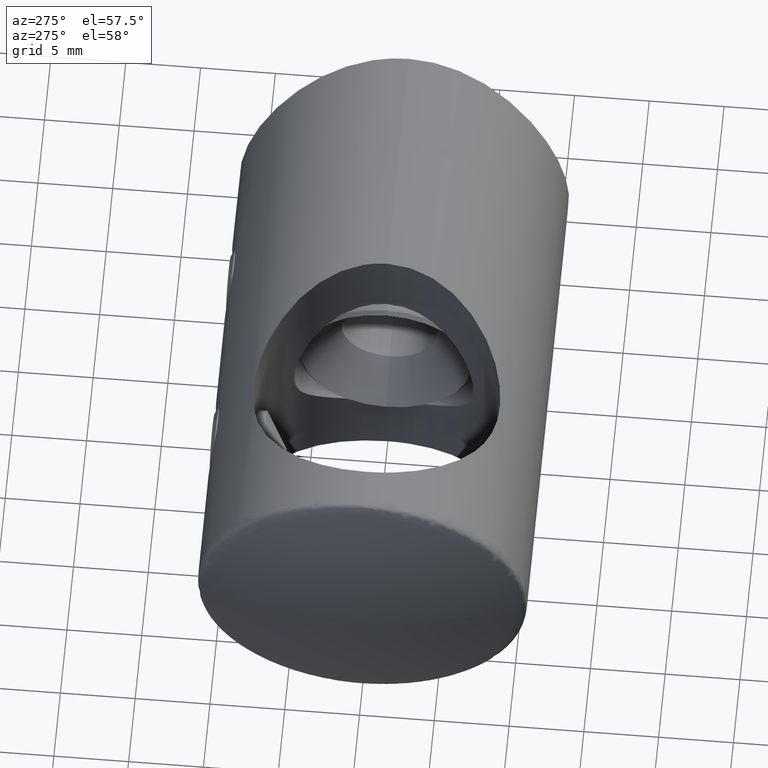
[diagram: clean part render]
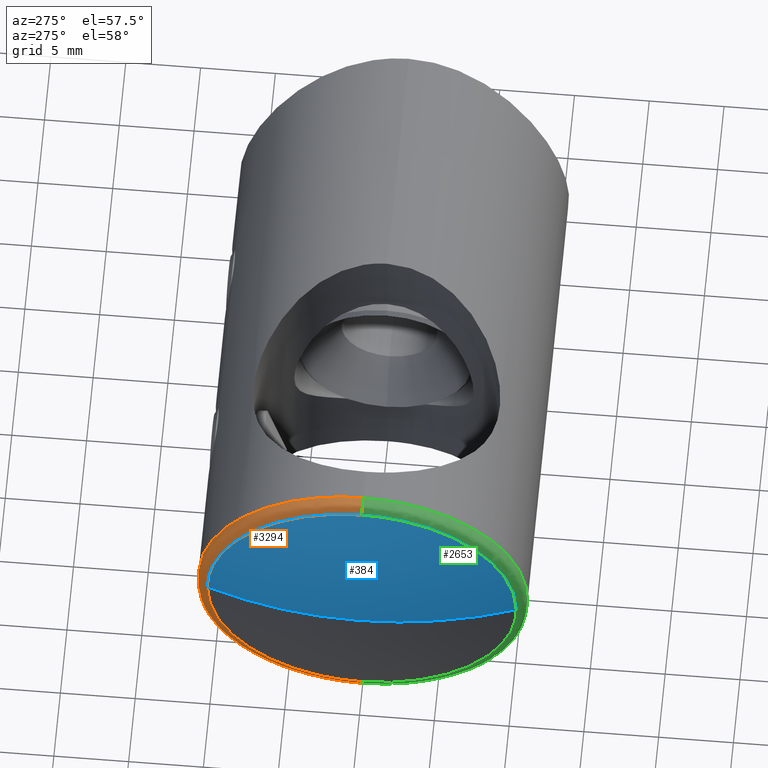
[diagram: same view with three faces highlighted in distinct colors, each labeled with its STEP entity id]
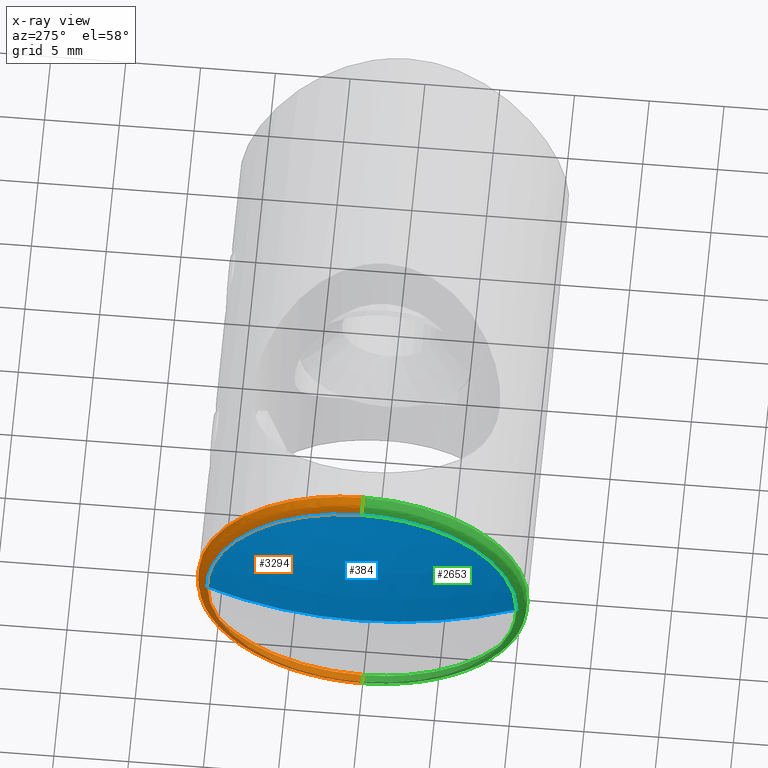
[diagram: x-ray of the same camera — body ghosted, the three highlighted faces saturated]
A machine part, auxiliary view with three faces highlighted in distinct colors.
The next image is the same camera in x-ray (body ghosted, the three faces saturated) — at least one of them is partly hidden behind the body in this view.
Their STEP definitions:

[orange] entity #3294 — the highlighted face is a freeform B-spline surface patch.
#96 = CARTESIAN_POINT ( 'NONE',  ( 1.756922039244211300, 10.06170120438815900, 2.704007071909405800 ) ) ;
#113 = CARTESIAN_POINT ( 'NONE',  ( 2.700700533988579500, 6.735557395310440100E-016, -10.99999999999999600 ) ) ;
#128 = CARTESIAN_POINT ( 'NONE',  ( 2.700700533988579500, -2.879226730170273200, 10.71369944243265800 ) ) ;
#152 = CARTESIAN_POINT ( 'NONE',  ( 2.700700533988579900, 5.539808784079892400, 9.611650271896836600 ) ) ;
#202 = CARTESIAN_POINT ( 'NONE',  ( 1.991401168373671600, -5.539808781859558300, -9.611650272817016100 ) ) ;
#218 = CARTESIAN_POINT ( 'NONE',  ( 1.756922039244510200, -6.348623141828340100, -8.261021097563572700 ) ) ;
#235 = CARTESIAN_POINT ( 'NONE',  ( 1.991401168373105400, -2.879226730172406200, -10.71369944243128300 ) ) ;
#252 = CARTESIAN_POINT ( 'NONE',  ( 1.991401168373389000, 10.71369944243242300, -2.879226730169565300 ) ) ;
#268 = CARTESIAN_POINT ( 'NONE',  ( 1.991401168373389000, 9.611650272815879200, -5.539808781862394200 ) ) ;
#310 = VERTEX_POINT ( 'NONE', #3356 ) ;
#376 = VERTEX_POINT ( 'NONE', #4851 ) ;
#453 = CARTESIAN_POINT ( 'NONE',  ( 1.756922039244400300, 10.33057851239669000, -1.352269562824468800 ) ) ;
#547 = CARTESIAN_POINT ( 'NONE',  ( 2.700700533988579500, 9.611650272815428100, -5.539808781862208600 ) ) ;
#555 = CARTESIAN_POINT ( 'NONE',  ( 2.700700533988579000, 1.439896632895322400, -10.99999999999999500 ) ) ;
#576 = CARTESIAN_POINT ( 'NONE',  ( 2.700700533988579900, 10.71369944335146900, 2.879226727952081800 ) ) ;
#592 = CARTESIAN_POINT ( 'NONE',  ( 2.700700533988579500, -5.539808781859387700, -9.611650272816595100 ) ) ;
#596 = CARTESIAN_POINT ( 'NONE',  ( 2.700700533988579500, 10.99999999999999800, 1.439896632895321800 ) ) ;
#607 = CARTESIAN_POINT ( 'NONE',  ( 2.700700533988579500, 10.99999999999999600, -1.439896630495494300 ) ) ;
#625 = CARTESIAN_POINT ( 'NONE',  ( 1.991401168373956500, 8.796335264681996300, 6.760013921420905600 ) ) ;
#643 = CARTESIAN_POINT ( 'NONE',  ( 1.756922039244520800, 9.026718888820257200, -5.202675414972051500 ) ) ;
#644 = ORIENTED_EDGE ( 'NONE', *, *, #4967, .F. ) ;
#662 = CARTESIAN_POINT ( 'NONE',  ( 1.756922039244400300, -1.352269562824466100, 10.33057851239669000 ) ) ;
#677 = CARTESIAN_POINT ( 'NONE',  ( 1.991401168373389900, 8.796335264683129700, -6.760013921420911000 ) ) ;
#776 = EDGE_CURVE ( 'NONE', #376, #2372, #2001, .T. ) ;
#786 = CARTESIAN_POINT ( 'NONE',  ( 1.991401168373389900, 1.347111479062088200E-015, 10.99999999999999800 ) ) ;
#832 = CARTESIAN_POINT ( 'NONE',  ( 1.756922039244400300, 9.026718887957203600, -5.202675417054742000 ) ) ;
#941 = CARTESIAN_POINT ( 'NONE',  ( 2.700700533988579500, 10.99999999999999600, 1.439896630495493000 ) ) ;
#988 = CARTESIAN_POINT ( 'NONE',  ( 2.700700533988579500, 8.796335266379976800, 6.760013919724059400 ) ) ;
#1007 = CARTESIAN_POINT ( 'NONE',  ( 2.700700533988579000, 2.879226727952080500, 10.71369944335146900 ) ) ;
#1020 = CARTESIAN_POINT ( 'NONE',  ( 2.700700533988579500, 2.879226730168871700, -10.71369944243324200 ) ) ;
#1026 = CARTESIAN_POINT ( 'NONE',  ( 2.700700533988579900, 10.99999999999999600, -1.439896632895319800 ) ) ;
#1039 = CARTESIAN_POINT ( 'NONE',  ( 1.756922039244196200, 2.704007071909384900, -10.06170120438812000 ) ) ;
#1059 = CARTESIAN_POINT ( 'NONE',  ( 1.991401168373390300, 11.00000000000000000, -1.439896630495495200 ) ) ;
#1073 = CARTESIAN_POINT ( 'NONE',  ( 1.991401168373390300, 1.439896630495494100, 11.00000000000000000 ) ) ;
#1088 = CARTESIAN_POINT ( 'NONE',  ( 1.991401168372537900, -8.796335264684824300, -6.760013921418077700 ) ) ;
#1109 = CARTESIAN_POINT ( 'NONE',  ( 1.991401168372821000, 6.760013921422030100, 8.796335264683143900 ) ) ;
#1121 = VERTEX_POINT ( 'NONE', #1921 ) ;
#1188 = CARTESIAN_POINT ( 'NONE',  ( 1.756922039244400500, 10.06170120525118800, 2.704007069827278500 ) ) ;
#1213 = CARTESIAN_POINT ( 'NONE',  ( 1.756922039244400500, -3.162827477136756300E-016, 10.33057851239669000 ) ) ;
#1300 = CARTESIAN_POINT ( 'NONE',  ( 1.756922039244400500, 10.33057851239669000, 9.398703391090517800E-016 ) ) ;
#1309 = CARTESIAN_POINT ( 'NONE',  ( 1.756922039244588600, 9.026718888820232300, 5.202675414972618200 ) ) ;
#1378 = CARTESIAN_POINT ( 'NONE',  ( 2.700700533988579500, -2.879226730172579800, -10.71369944243170600 ) ) ;
#1395 = CARTESIAN_POINT ( 'NONE',  ( 2.700700533988579500, 8.796335264683126100, -6.760013921420911800 ) ) ;
#1411 = CARTESIAN_POINT ( 'NONE',  ( 2.700700533988579500, -5.539808781861667700, 9.611650272815653700 ) ) ;
#1417 = CARTESIAN_POINT ( 'NONE',  ( 2.700700533988579500, 6.760013919724062100, 8.796335266379978500 ) ) ;
#1429 = CARTESIAN_POINT ( 'NONE',  ( 2.700700533988579500, 1.347111479062087800E-015, 10.99999999999999600 ) ) ;
#1467 = CARTESIAN_POINT ( 'NONE',  ( 1.991401168373388500, -5.539808781862271700, 9.611650272817108500 ) ) ;
#1480 = CARTESIAN_POINT ( 'NONE',  ( 1.756922039244400500, -10.33057851239669000, -1.352269562827477700 ) ) ;
#1499 = CARTESIAN_POINT ( 'NONE',  ( 1.756922039244275300, -10.06170120438695600, -2.704007071912782700 ) ) ;
#1518 = CARTESIAN_POINT ( 'NONE',  ( 2.700700533988579500, 2.879226730169502300, 10.71369944243298300 ) ) ;
#1533 = CARTESIAN_POINT ( 'NONE',  ( 1.756922039244547300, -5.202675414972121700, 9.026718888820312300 ) ) ;
#1624 = CARTESIAN_POINT ( 'NONE',  ( 1.756922039244541500, 6.348623141831094300, 8.261021097560945500 ) ) ;
#1644 = CARTESIAN_POINT ( 'NONE',  ( 1.756922039244400300, 5.202675417054743800, 9.026718887957201800 ) ) ;
#1662 = CARTESIAN_POINT ( 'NONE',  ( 1.756922039244400300, 8.261021099154746100, 6.348623140236722600 ) ) ;
#1760 = B_SPLINE_CURVE_WITH_KNOTS ( 'NONE', 3,
 ( #1300, #2091, #5092, #832, #5109, #3819, #4283, #4249, #3024, #2543 ),
 .UNSPECIFIED., .F., .F.,
 ( 4, 2, 2, 2, 4 ),
 ( 0.2500000000000000000, 0.3125000000000000000, 0.3750000000000000000, 0.4375000000000000000, 0.5000000000000000000 ),
 .UNSPECIFIED. ) ;
#1788 = CARTESIAN_POINT ( 'NONE',  ( 2.700700533988579500, -1.439896630495491700, 10.99999999999999600 ) ) ;
#1824 = CARTESIAN_POINT ( 'NONE',  ( 2.700700533988579500, -8.796335264683142100, 6.760013921420894100 ) ) ;
#1830 = CARTESIAN_POINT ( 'NONE',  ( 2.700700533988579500, -6.735557395310441000E-016, 10.99999999999999600 ) ) ;
#1847 = CARTESIAN_POINT ( 'NONE',  ( 2.700700533988579500, -10.71369944243440700, 2.879226730166064100 ) ) ;
#1883 = CARTESIAN_POINT ( 'NONE',  ( 1.991401168373390300, -11.00000000000000000, 1.439896630498682900 ) ) ;
#1902 = CARTESIAN_POINT ( 'NONE',  ( 1.991401168372821400, -8.796335264683714100, 6.760013921421464300 ) ) ;
#1919 = CARTESIAN_POINT ( 'NONE',  ( 1.756922039244601000, -9.026718888819088300, 5.202675414975465700 ) ) ;
#1921 = CARTESIAN_POINT ( 'NONE',  ( 1.756922039244400500, -3.162827477136756300E-016, 10.33057851239669000 ) ) ;
#1932 = CARTESIAN_POINT ( 'NONE',  ( 1.991401168373390300, 1.347111479062088200E-015, 11.00000000000000000 ) ) ;
#1953 = CARTESIAN_POINT ( 'NONE',  ( 1.756922039244199300, -10.06170120438929400, 2.704007071906579200 ) ) ;
#2001 =( BOUNDED_CURVE ( )  B_SPLINE_CURVE ( 2, ( #113, #3048, #3946 ),
 .UNSPECIFIED., .F., .F. ) 
 B_SPLINE_CURVE_WITH_KNOTS ( ( 3, 3 ),
 ( 0.0000000000000000000, 1.000000000000000000 ),
 .UNSPECIFIED. ) 
 CURVE ( )  GEOMETRIC_REPRESENTATION_ITEM ( )  RATIONAL_B_SPLINE_CURVE ( ( 1.000000000000000000, 4.078263282937810700, 1.000000000000000000 ) ) 
 REPRESENTATION_ITEM ( '' )  );
#2055 = CARTESIAN_POINT ( 'NONE',  ( 1.756922039244400500, 6.348623140236719000, 8.261021099154751500 ) ) ;
#2089 = CARTESIAN_POINT ( 'NONE',  ( 1.756922039244400500, 9.026718887957201800, 5.202675417054750000 ) ) ;
#2091 = CARTESIAN_POINT ( 'NONE',  ( 1.756922039244400500, 10.33057851239669100, -1.352269565078248400 ) ) ;
#2217 = CARTESIAN_POINT ( 'NONE',  ( 2.700700533988579500, -10.99999999999999800, 1.439896630498682400 ) ) ;
#2290 = CARTESIAN_POINT ( 'NONE',  ( 1.756922039244400500, 1.581413738568378900E-015, -10.33057851239669000 ) ) ;
#2315 = CARTESIAN_POINT ( 'NONE',  ( 1.991401168373672100, -10.71369944243468600, 2.879226730166179600 ) ) ;
#2329 = CARTESIAN_POINT ( 'NONE',  ( 2.700700533988579500, 5.539808781862499900, 9.611650272815303700 ) ) ;
#2346 = CARTESIAN_POINT ( 'NONE',  ( 2.700700533988579500, 6.760013921421462500, 8.796335264682577200 ) ) ;
#2363 = CARTESIAN_POINT ( 'NONE',  ( 1.991401168373389000, 5.539808781861833800, -9.611650272814744200 ) ) ;
#2372 = VERTEX_POINT ( 'NONE', #2290 ) ;
#2381 = CARTESIAN_POINT ( 'NONE',  ( 1.756922039244524600, -5.202675414969234200, -9.026718888821436700 ) ) ;
#2543 = CARTESIAN_POINT ( 'NONE',  ( 1.756922039244400500, 1.581413738568378900E-015, -10.33057851239669000 ) ) ;
#2638 = CARTESIAN_POINT ( 'NONE',  ( 2.700700533988579500, 6.760013921420911000, -8.796335264683127900 ) ) ;
#2663 = CARTESIAN_POINT ( 'NONE',  ( 2.700700533988579500, 2.879226727952081800, -10.71369944335146900 ) ) ;
#2699 = CARTESIAN_POINT ( 'NONE',  ( 2.700700533988579500, -8.796335264685394500, -6.760013921418646100 ) ) ;
#2705 = CARTESIAN_POINT ( 'NONE',  ( 2.700700533988579500, -6.735557395310441000E-016, 10.99999999999999600 ) ) ;
#2718 = CARTESIAN_POINT ( 'NONE',  ( 2.700700533988579500, 10.71369944243287600, -2.879226730169753200 ) ) ;
#2734 = CARTESIAN_POINT ( 'NONE',  ( 1.991401168374240500, -6.760013921419203900, -8.796335264685970000 ) ) ;
#2754 = CARTESIAN_POINT ( 'NONE',  ( 1.756922039244290400, -8.261021097563119800, -6.348623141827907500 ) ) ;
#2761 = ORIENTED_EDGE ( 'NONE', *, *, #3672, .F. ) ;
#2774 = CARTESIAN_POINT ( 'NONE',  ( 1.756922039244400300, 1.265130990854703100E-015, 10.33057851239669000 ) ) ;
#2789 = CARTESIAN_POINT ( 'NONE',  ( 1.991401168373957000, -6.760013921420338100, 8.796335264682568300 ) ) ;
#2792 = EDGE_CURVE ( 'NONE', #1121, #310, #4462, .T. ) ;
#2806 = CARTESIAN_POINT ( 'NONE',  ( 1.756922039244259000, -6.348623141829968100, 8.261021097560933100 ) ) ;
#2816 =( BOUNDED_CURVE ( )  B_SPLINE_CURVE ( 2, ( #4502, #786, #1213 ),
 .UNSPECIFIED., .F., .T. ) 
 B_SPLINE_CURVE_WITH_KNOTS ( ( 3, 3 ),
 ( 0.0000000000000000000, 1.000000000000000000 ),
 .UNSPECIFIED. ) 
 CURVE ( )  GEOMETRIC_REPRESENTATION_ITEM ( )  RATIONAL_B_SPLINE_CURVE ( ( 1.000000000000000000, 4.078263282937810700, 1.000000000000000000 ) ) 
 REPRESENTATION_ITEM ( '' )  );
#2866 = CARTESIAN_POINT ( 'NONE',  ( 1.756922039244259000, 8.261021097560366400, 6.348623141830538300 ) ) ;
#3009 = FACE_OUTER_BOUND ( 'NONE', #4238, .T. ) ;
#3024 = CARTESIAN_POINT ( 'NONE',  ( 1.756922039244400500, 1.352269565078253900, -10.33057851239669100 ) ) ;
#3048 = CARTESIAN_POINT ( 'NONE',  ( 1.991401168373389900, 0.0000000000000000000, -10.99999999999999800 ) ) ;
#3106 = CARTESIAN_POINT ( 'NONE',  ( 2.700700533988579500, 1.439896630495578900, -10.99999999999999600 ) ) ;
#3133 = CARTESIAN_POINT ( 'NONE',  ( 2.700700533988578600, 10.71369944335146600, -2.879226727952080500 ) ) ;
#3145 = CARTESIAN_POINT ( 'NONE',  ( 2.700700533988579500, -6.760013921418633700, -8.796335264685403400 ) ) ;
#3150 = CARTESIAN_POINT ( 'NONE',  ( 2.700700533988579000, 9.611650271896833100, 5.539808784079891500 ) ) ;
#3151 = ORIENTED_EDGE ( 'NONE', *, *, #776, .T. ) ;
#3163 = CARTESIAN_POINT ( 'NONE',  ( 2.700700533988579500, -1.439896630495578900, -10.99999999999999600 ) ) ;
#3183 = CARTESIAN_POINT ( 'NONE',  ( 1.991401168373389900, 9.611650272813610800, 5.539808781862406700 ) ) ;
#3198 = CARTESIAN_POINT ( 'NONE',  ( 1.756922039244400000, 8.261021097561359400, -6.348623141830112000 ) ) ;
#3214 = CARTESIAN_POINT ( 'NONE',  ( 1.991401168373389900, 6.760013921420911000, -8.796335264683129700 ) ) ;
#3237 = CARTESIAN_POINT ( 'NONE',  ( 1.991401168373390300, -11.00000000000000000, -1.439896630498699100 ) ) ;
#3258 = CARTESIAN_POINT ( 'NONE',  ( 1.756922039244400300, 1.352269562824548000, -10.33057851239669000 ) ) ;
#3273 = CARTESIAN_POINT ( 'NONE',  ( 1.756922039244533100, 5.202675414972132400, 9.026718888820260700 ) ) ;
#3294 = ADVANCED_FACE ( 'NONE', ( #3009 ), #4163, .T. ) ;
#3312 = CARTESIAN_POINT ( 'NONE',  ( 1.756922039244267300, 2.704007071909910700, 10.06170120438812400 ) ) ;
#3356 = CARTESIAN_POINT ( 'NONE',  ( 1.756922039244400500, 10.33057851239669000, 9.398703391090517800E-016 ) ) ;
#3539 = CARTESIAN_POINT ( 'NONE',  ( 2.700700533988579500, 9.611650272815257500, 5.539808781862618000 ) ) ;
#3546 = CARTESIAN_POINT ( 'NONE',  ( 2.700700533988579500, 9.611650271896834900, -5.539808784079888900 ) ) ;
#3564 = CARTESIAN_POINT ( 'NONE',  ( 2.700700533988579500, 6.760013919724061200, -8.796335266379975000 ) ) ;
#3582 = CARTESIAN_POINT ( 'NONE',  ( 2.700700533988579000, 5.539808784079891500, -9.611650271896834900 ) ) ;
#3597 = CARTESIAN_POINT ( 'NONE',  ( 1.991401168373390300, -1.439896630495491700, 11.00000000000000000 ) ) ;
#3613 = CARTESIAN_POINT ( 'NONE',  ( 2.700700533988579500, 8.796335264682564800, 6.760013921421475800 ) ) ;
#3631 = CARTESIAN_POINT ( 'NONE',  ( 2.700700533988579500, 1.439896630495494300, 10.99999999999999600 ) ) ;
#3650 = CARTESIAN_POINT ( 'NONE',  ( 1.756922039244400000, -10.33057851239669000, 1.352269562827463000 ) ) ;
#3665 = CARTESIAN_POINT ( 'NONE',  ( 1.991401168373389900, 10.71369944243469200, 2.879226730169576000 ) ) ;
#3672 = EDGE_CURVE ( 'NONE', #5016, #1121, #2816, .T. ) ;
#3819 = CARTESIAN_POINT ( 'NONE',  ( 1.756922039244400300, 6.348623140236723500, -8.261021099154746100 ) ) ;
#3925 = CARTESIAN_POINT ( 'NONE',  ( 2.700700533988579500, 10.71369944243304000, 2.879226730169361000 ) ) ;
#3941 = CARTESIAN_POINT ( 'NONE',  ( 2.700700533988579500, -10.71369944243187100, -2.879226730172183200 ) ) ;
#3946 = CARTESIAN_POINT ( 'NONE',  ( 1.756922039244400500, 1.581413738568378900E-015, -10.33057851239669000 ) ) ;
#3947 = CARTESIAN_POINT ( 'NONE',  ( 2.700700533988579500, 6.735557395310440100E-016, -10.99999999999999600 ) ) ;
#3968 = CARTESIAN_POINT ( 'NONE',  ( 2.700700533988579900, 1.439896632895322200, 10.99999999999999600 ) ) ;
#4000 = CARTESIAN_POINT ( 'NONE',  ( 2.700700533988579500, 5.539808781863098600, -9.611650272815058600 ) ) ;
#4015 = CARTESIAN_POINT ( 'NONE',  ( 1.756922039244400000, 6.348623141830111100, -8.261021097561361200 ) ) ;
#4032 = CARTESIAN_POINT ( 'NONE',  ( 1.991401168373389000, 2.879226730170266100, 10.71369944243346100 ) ) ;
#4050 = CARTESIAN_POINT ( 'NONE',  ( 1.756922039244275700, -2.704007071912778200, -10.06170120438695800 ) ) ;
#4058 = B_SPLINE_CURVE_WITH_KNOTS ( 'NONE', 3,
 ( #3947, #555, #2663, #3582, #3564, #4396, #3546, #3133, #1026, #596, #576, #3150, #988, #1417, #152, #1007, #3968, #1830 ),
 .UNSPECIFIED., .F., .F.,
 ( 4, 2, 2, 2, 2, 2, 2, 2, 4 ),
 ( 0.5000000000000000000, 0.5625000000000000000, 0.6250000000000000000, 0.6874999999999998900, 0.7499999999999998900, 0.8124999999999998900, 0.8750000000000000000, 0.9375000000000000000, 1.000000000000000000 ),
 .UNSPECIFIED. ) ;
#4067 = CARTESIAN_POINT ( 'NONE',  ( 1.991401168373390300, 1.439896630495578700, -11.00000000000000000 ) ) ;
#4085 = CARTESIAN_POINT ( 'NONE',  ( 1.756922039244252800, -2.704007071909865900, 10.06170120438809300 ) ) ;
#4163 =( BOUNDED_SURFACE ( )  B_SPLINE_SURFACE ( 2, 3, ( 
 ( #1429, #1788, #128, #1411, #4843, #1824, #5176, #1847, #2217, #4824, #3941, #5251, #2699, #3145, #592, #1378, #3163, #3106, #1020, #4000, #2638, #1395, #547, #2718, #607, #941, #3925, #3539, #3613, #2346, #2329, #1518, #3631, #4458 ),
 ( #1932, #3597, #5268, #1467, #2789, #1902, #4910, #2315, #1883, #3237, #5303, #5318, #1088, #2734, #202, #235, #4444, #4067, #4493, #2363, #3214, #677, #268, #252, #1059, #4858, #3665, #3183, #625, #1109, #4874, #4032, #1073, #5287 ),
 ( #2774, #662, #4085, #1533, #2806, #4510, #1919, #1953, #3650, #1480, #1499, #4926, #2754, #218, #2381, #4050, #5335, #3258, #1039, #4475, #4015, #3198, #643, #4891, #453, #5051, #96, #1309, #2866, #1624, #3273, #3312, #4600, #4164 ) ),
 .UNSPECIFIED., .F., .T., .F. ) 
 B_SPLINE_SURFACE_WITH_KNOTS ( ( 3, 3 ),
 ( 4, 2, 2, 2, 2, 2, 2, 2, 2, 2, 2, 2, 2, 2, 2, 2, 4 ),
 ( 0.0000000000000000000, 1.000000000000000000 ),
 ( -3.141592653589793100, -2.748893571891069000, -2.356194490192344800, -1.963495408493620700, -1.570796326794896600, -1.178097245096172400, -0.7853981633974482800, -0.3926990816987241400, 0.0000000000000000000, 0.3926990816987241400, 0.7853981633974482800, 1.178097245096172400, 1.570796326794896600, 1.963495408493620700, 2.356194490192344800, 2.748893571891069000, 3.141592653589793100 ),
 .UNSPECIFIED. ) 
 GEOMETRIC_REPRESENTATION_ITEM ( )  RATIONAL_B_SPLINE_SURFACE ( (
 ( 1.000000000000000000, 1.000000000000000000, 1.000000000000000000, 1.000000000000000000, 1.000000000000000000, 1.000000000000000000, 1.000000000000000000, 1.000000000000000000, 1.000000000000000000, 1.000000000000000000, 1.000000000000000000, 1.000000000000000000, 1.000000000000000000, 1.000000000000000000, 1.000000000000000000, 1.000000000000000000, 1.000000000000000000, 1.000000000000000000, 1.000000000000000000, 1.000000000000000000, 1.000000000000000000, 1.000000000000000000, 1.000000000000000000, 1.000000000000000000, 1.000000000000000000, 1.000000000000000000, 1.000000000000000000, 1.000000000000000000, 1.000000000000000000, 1.000000000000000000, 1.000000000000000000, 1.000000000000000000, 1.000000000000000000, 1.000000000000000000),
 ( 4.078263282937810700, 4.078263282937810700, 4.078263282937807200, 4.078263282937807200, 4.078263282937810700, 4.078263282937810700, 4.078263282937807200, 4.078263282937807200, 4.078263282937810700, 4.078263282937810700, 4.078263282937810700, 4.078263282937810700, 4.078263282937810700, 4.078263282937810700, 4.078263282937809800, 4.078263282937809800, 4.078263282937810700, 4.078263282937810700, 4.078263282937808900, 4.078263282937808900, 4.078263282937810700, 4.078263282937810700, 4.078263282937809800, 4.078263282937809800, 4.078263282937810700, 4.078263282937810700, 4.078263282937810700, 4.078263282937810700, 4.078263282937809800, 4.078263282937809800, 4.078263282937808000, 4.078263282937808000, 4.078263282937810700, 4.078263282937810700),
 ( 1.000000000000000000, 1.000000000000000000, 1.000000000000000000, 1.000000000000000000, 1.000000000000000000, 1.000000000000000000, 1.000000000000000000, 1.000000000000000000, 1.000000000000000000, 1.000000000000000000, 1.000000000000000000, 1.000000000000000000, 1.000000000000000000, 1.000000000000000000, 1.000000000000000000, 1.000000000000000000, 1.000000000000000000, 1.000000000000000000, 1.000000000000000000, 1.000000000000000000, 1.000000000000000000, 1.000000000000000000, 1.000000000000000000, 1.000000000000000000, 1.000000000000000000, 1.000000000000000000, 1.000000000000000000, 1.000000000000000000, 1.000000000000000000, 1.000000000000000000, 1.000000000000000000, 1.000000000000000000, 1.000000000000000000, 1.000000000000000000) ) ) 
 REPRESENTATION_ITEM ( '' )  SURFACE ( )  );
#4164 = CARTESIAN_POINT ( 'NONE',  ( 1.756922039244400300, 1.265130990854703100E-015, 10.33057851239669000 ) ) ;
#4238 = EDGE_LOOP ( 'NONE', ( #644, #3151, #4239, #4445, #2761 ) ) ;
#4239 = ORIENTED_EDGE ( 'NONE', *, *, #5423, .F. ) ;
#4246 = CARTESIAN_POINT ( 'NONE',  ( 1.756922039244400500, 10.33057851239669000, 9.398703391090517800E-016 ) ) ;
#4249 = CARTESIAN_POINT ( 'NONE',  ( 1.756922039244400500, 2.704007069827279300, -10.06170120525118800 ) ) ;
#4283 = CARTESIAN_POINT ( 'NONE',  ( 1.756922039244400500, 5.202675417054750900, -9.026718887957201800 ) ) ;
#4396 = CARTESIAN_POINT ( 'NONE',  ( 2.700700533988579000, 8.796335266379978500, -6.760013919724060300 ) ) ;
#4444 = CARTESIAN_POINT ( 'NONE',  ( 1.991401168373390300, -1.439896630495578700, -11.00000000000000000 ) ) ;
#4445 = ORIENTED_EDGE ( 'NONE', *, *, #2792, .F. ) ;
#4458 = CARTESIAN_POINT ( 'NONE',  ( 2.700700533988579500, 1.347111479062087800E-015, 10.99999999999999600 ) ) ;
#4462 = B_SPLINE_CURVE_WITH_KNOTS ( 'NONE', 3,
 ( #5452, #5433, #4643, #1644, #2055, #1662, #2089, #1188, #5001, #4246 ),
 .UNSPECIFIED., .F., .F.,
 ( 4, 2, 2, 2, 4 ),
 ( 0.0000000000000000000, 0.06250000000000000000, 0.1250000000000000000, 0.1875000000000000000, 0.2500000000000000000 ),
 .UNSPECIFIED. ) ;
#4475 = CARTESIAN_POINT ( 'NONE',  ( 1.756922039244604300, 5.202675414972631500, -9.026718888820273200 ) ) ;
#4493 = CARTESIAN_POINT ( 'NONE',  ( 1.991401168373389000, 2.879226730170137300, -10.71369944243355800 ) ) ;
#4502 = CARTESIAN_POINT ( 'NONE',  ( 2.700700533988579500, -6.735557395310441000E-016, 10.99999999999999600 ) ) ;
#4510 = CARTESIAN_POINT ( 'NONE',  ( 1.756922039244541500, -8.261021097561512100, 6.348623141830525900 ) ) ;
#4600 = CARTESIAN_POINT ( 'NONE',  ( 1.756922039244400300, 1.352269562824468800, 10.33057851239669000 ) ) ;
#4643 = CARTESIAN_POINT ( 'NONE',  ( 1.756922039244400700, 2.704007069827276200, 10.06170120525118800 ) ) ;
#4824 = CARTESIAN_POINT ( 'NONE',  ( 2.700700533988579500, -10.99999999999999500, -1.439896630498698200 ) ) ;
#4843 = CARTESIAN_POINT ( 'NONE',  ( 2.700700533988579500, -6.760013921420907400, 8.796335264683131400 ) ) ;
#4851 = CARTESIAN_POINT ( 'NONE',  ( 2.700700533988579500, 6.735557395310440100E-016, -10.99999999999999600 ) ) ;
#4858 = CARTESIAN_POINT ( 'NONE',  ( 1.991401168373390300, 11.00000000000000000, 1.439896630495493200 ) ) ;
#4874 = CARTESIAN_POINT ( 'NONE',  ( 1.991401168373389000, 5.539808781861732500, 9.611650272814825900 ) ) ;
#4891 = CARTESIAN_POINT ( 'NONE',  ( 1.756922039244279700, 10.06170120438814100, -2.704007071909956900 ) ) ;
#4910 = CARTESIAN_POINT ( 'NONE',  ( 1.991401168373105000, -9.611650272813602000, 5.539808781865822600 ) ) ;
#4926 = CARTESIAN_POINT ( 'NONE',  ( 1.756922039244524600, -9.026718888821434900, -5.202675414969237800 ) ) ;
#4967 = EDGE_CURVE ( 'NONE', #376, #5016, #4058, .T. ) ;
#5001 = CARTESIAN_POINT ( 'NONE',  ( 1.756922039244400500, 10.33057851239669100, 1.352269565078253200 ) ) ;
#5016 = VERTEX_POINT ( 'NONE', #2705 ) ;
#5051 = CARTESIAN_POINT ( 'NONE',  ( 1.756922039244400300, 10.33057851239669000, 1.352269562824467400 ) ) ;
#5092 = CARTESIAN_POINT ( 'NONE',  ( 1.756922039244400700, 10.06170120525119000, -2.704007069827276200 ) ) ;
#5109 = CARTESIAN_POINT ( 'NONE',  ( 1.756922039244400500, 8.261021099154753200, -6.348623140236719000 ) ) ;
#5176 = CARTESIAN_POINT ( 'NONE',  ( 2.700700533988579500, -9.611650272813880800, 5.539808781865938100 ) ) ;
#5251 = CARTESIAN_POINT ( 'NONE',  ( 2.700700533988579500, -9.611650272816426400, -5.539808781859792800 ) ) ;
#5268 = CARTESIAN_POINT ( 'NONE',  ( 1.991401168373388500, -2.879226730169670100, 10.71369944243120100 ) ) ;
#5287 = CARTESIAN_POINT ( 'NONE',  ( 1.991401168373390300, 1.347111479062088200E-015, 11.00000000000000000 ) ) ;
#5303 = CARTESIAN_POINT ( 'NONE',  ( 1.991401168373389900, -10.71369944243242000, -2.879226730173547900 ) ) ;
#5318 = CARTESIAN_POINT ( 'NONE',  ( 1.991401168373389900, -9.611650272815875700, -5.539808781858430300 ) ) ;
#5335 = CARTESIAN_POINT ( 'NONE',  ( 1.756922039244400300, -1.352269562824548000, -10.33057851239669000 ) ) ;
#5423 = EDGE_CURVE ( 'NONE', #310, #2372, #1760, .T. ) ;
#5433 = CARTESIAN_POINT ( 'NONE',  ( 1.756922039244400500, 1.352269565078248800, 10.33057851239669300 ) ) ;
#5452 = CARTESIAN_POINT ( 'NONE',  ( 1.756922039244400500, -3.162827477136756300E-016, 10.33057851239669000 ) ) ;

[blue] entity #384 — the highlighted spherical surface has radius 31.25 mm.
#310 = VERTEX_POINT ( 'NONE', #3356 ) ;
#384 = ADVANCED_FACE ( 'NONE', ( #3626 ), #5285, .T. ) ;
#1121 = VERTEX_POINT ( 'NONE', #1921 ) ;
#1188 = CARTESIAN_POINT ( 'NONE',  ( 1.756922039244400500, 10.06170120525118800, 2.704007069827278500 ) ) ;
#1201 = CARTESIAN_POINT ( 'NONE',  ( 0.0000000000000000000, 1.913510623667738700E-015, 0.0000000000000000000 ) ) ;
#1223 = CIRCLE ( 'NONE', #4492, 31.24999999999998900 ) ;
#1377 = ORIENTED_EDGE ( 'NONE', *, *, #1734, .F. ) ;
#1644 = CARTESIAN_POINT ( 'NONE',  ( 1.756922039244400300, 5.202675417054743800, 9.026718887957201800 ) ) ;
#1662 = CARTESIAN_POINT ( 'NONE',  ( 1.756922039244400300, 8.261021099154746100, 6.348623140236722600 ) ) ;
#1719 = CARTESIAN_POINT ( 'NONE',  ( 1.756922039244400500, -5.202675417054735800, 9.026718887957207100 ) ) ;
#1734 = EDGE_CURVE ( 'NONE', #2758, #3380, #1810, .T. ) ;
#1810 = CIRCLE ( 'NONE', #2479, 31.24999999999998900 ) ;
#1921 = CARTESIAN_POINT ( 'NONE',  ( 1.756922039244400500, -3.162827477136756300E-016, 10.33057851239669000 ) ) ;
#2002 = EDGE_CURVE ( 'NONE', #310, #3380, #1223, .T. ) ;
#2055 = CARTESIAN_POINT ( 'NONE',  ( 1.756922039244400500, 6.348623140236719000, 8.261021099154751500 ) ) ;
#2089 = CARTESIAN_POINT ( 'NONE',  ( 1.756922039244400500, 9.026718887957201800, 5.202675417054750000 ) ) ;
#2104 = ORIENTED_EDGE ( 'NONE', *, *, #2792, .T. ) ;
#2173 = DIRECTION ( 'NONE',  ( 1.000000000000000000, 0.0000000000000000000, 0.0000000000000000000 ) ) ;
#2197 = CARTESIAN_POINT ( 'NONE',  ( 1.756922039244400500, -9.026718887957205300, 5.202675417054743800 ) ) ;
#2206 = CARTESIAN_POINT ( 'NONE',  ( 31.24999999999998900, 0.0000000000000000000, 0.0000000000000000000 ) ) ;
#2308 = CARTESIAN_POINT ( 'NONE',  ( 31.24999999999998900, 0.0000000000000000000, 0.0000000000000000000 ) ) ;
#2479 = AXIS2_PLACEMENT_3D ( 'NONE', #3342, #5043, #2939 ) ;
#2495 = ORIENTED_EDGE ( 'NONE', *, *, #2002, .T. ) ;
#2579 = CARTESIAN_POINT ( 'NONE',  ( 1.756922039244400500, -2.704007069827262900, 10.06170120525119100 ) ) ;
#2758 = VERTEX_POINT ( 'NONE', #3669 ) ;
#2792 = EDGE_CURVE ( 'NONE', #1121, #310, #4462, .T. ) ;
#2939 = DIRECTION ( 'NONE',  ( 0.0000000000000000000, 1.000000000000000000, 1.224646799147353200E-016 ) ) ;
#3004 = CARTESIAN_POINT ( 'NONE',  ( 1.756922039244400700, -6.348623140236732400, 8.261021099154740800 ) ) ;
#3017 = EDGE_CURVE ( 'NONE', #2758, #1121, #3070, .T. ) ;
#3070 = B_SPLINE_CURVE_WITH_KNOTS ( 'NONE', 3,
 ( #4264, #4280, #5090, #2197, #3459, #3004, #1719, #2579, #5161, #4748 ),
 .UNSPECIFIED., .F., .F.,
 ( 4, 2, 2, 2, 4 ),
 ( 0.7500000000000000000, 0.8125000000000000000, 0.8750000000000000000, 0.9375000000000000000, 1.000000000000000000 ),
 .UNSPECIFIED. ) ;
#3174 = DIRECTION ( 'NONE',  ( 0.0000000000000000000, 1.000000000000000000, 0.0000000000000000000 ) ) ;
#3257 = AXIS2_PLACEMENT_3D ( 'NONE', #2308, #4155, #3174 ) ;
#3342 = CARTESIAN_POINT ( 'NONE',  ( 31.24999999999998900, 0.0000000000000000000, 0.0000000000000000000 ) ) ;
#3356 = CARTESIAN_POINT ( 'NONE',  ( 1.756922039244400500, 10.33057851239669000, 9.398703391090517800E-016 ) ) ;
#3380 = VERTEX_POINT ( 'NONE', #1201 ) ;
#3434 = DIRECTION ( 'NONE',  ( -0.0000000000000000000, 0.0000000000000000000, 1.000000000000000000 ) ) ;
#3459 = CARTESIAN_POINT ( 'NONE',  ( 1.756922039244400500, -8.261021099154756800, 6.348623140236709300 ) ) ;
#3578 = EDGE_LOOP ( 'NONE', ( #1377, #4449, #2104, #2495 ) ) ;
#3626 = FACE_OUTER_BOUND ( 'NONE', #3578, .T. ) ;
#3669 = CARTESIAN_POINT ( 'NONE',  ( 1.756922039244400500, -10.33057851239669000, -5.583983872732769300E-015 ) ) ;
#4155 = DIRECTION ( 'NONE',  ( -0.0000000000000000000, 0.0000000000000000000, -1.000000000000000000 ) ) ;
#4246 = CARTESIAN_POINT ( 'NONE',  ( 1.756922039244400500, 10.33057851239669000, 9.398703391090517800E-016 ) ) ;
#4264 = CARTESIAN_POINT ( 'NONE',  ( 1.756922039244400500, -10.33057851239669000, -5.583983872732769300E-015 ) ) ;
#4280 = CARTESIAN_POINT ( 'NONE',  ( 1.756922039244400700, -10.33057851239669300, 1.352269565078247500 ) ) ;
#4449 = ORIENTED_EDGE ( 'NONE', *, *, #3017, .T. ) ;
#4462 = B_SPLINE_CURVE_WITH_KNOTS ( 'NONE', 3,
 ( #5452, #5433, #4643, #1644, #2055, #1662, #2089, #1188, #5001, #4246 ),
 .UNSPECIFIED., .F., .F.,
 ( 4, 2, 2, 2, 4 ),
 ( 0.0000000000000000000, 0.06250000000000000000, 0.1250000000000000000, 0.1875000000000000000, 0.2500000000000000000 ),
 .UNSPECIFIED. ) ;
#4492 = AXIS2_PLACEMENT_3D ( 'NONE', #2206, #3434, #2173 ) ;
#4643 = CARTESIAN_POINT ( 'NONE',  ( 1.756922039244400700, 2.704007069827276200, 10.06170120525118800 ) ) ;
#4748 = CARTESIAN_POINT ( 'NONE',  ( 1.756922039244400500, -3.162827477136756300E-016, 10.33057851239669000 ) ) ;
#5001 = CARTESIAN_POINT ( 'NONE',  ( 1.756922039244400500, 10.33057851239669100, 1.352269565078253200 ) ) ;
#5043 = DIRECTION ( 'NONE',  ( 0.0000000000000000000, 1.224646799147353200E-016, -1.000000000000000000 ) ) ;
#5090 = CARTESIAN_POINT ( 'NONE',  ( 1.756922039244400700, -10.06170120525118800, 2.704007069827273100 ) ) ;
#5161 = CARTESIAN_POINT ( 'NONE',  ( 1.756922039244400300, -1.352269565078255000, 10.33057851239669100 ) ) ;
#5285 = SPHERICAL_SURFACE ( 'NONE', #3257, 31.24999999999998900 ) ;
#5433 = CARTESIAN_POINT ( 'NONE',  ( 1.756922039244400500, 1.352269565078248800, 10.33057851239669300 ) ) ;
#5452 = CARTESIAN_POINT ( 'NONE',  ( 1.756922039244400500, -3.162827477136756300E-016, 10.33057851239669000 ) ) ;

[green] entity #2653 — the highlighted face is a freeform B-spline surface patch.
#92 = CARTESIAN_POINT ( 'NONE',  ( 1.756922039244400300, 1.352269562824548000, -10.33057851239669000 ) ) ;
#97 = CARTESIAN_POINT ( 'NONE',  ( 2.700700533988579500, -5.539808784079897700, 9.611650271896827700 ) ) ;
#113 = CARTESIAN_POINT ( 'NONE',  ( 2.700700533988579500, 6.735557395310440100E-016, -10.99999999999999600 ) ) ;
#116 = CARTESIAN_POINT ( 'NONE',  ( 1.756922039244259000, 8.261021097560366400, 6.348623141830538300 ) ) ;
#133 = CARTESIAN_POINT ( 'NONE',  ( 1.756922039244524600, -5.202675414969234200, -9.026718888821436700 ) ) ;
#138 = CARTESIAN_POINT ( 'NONE',  ( 1.756922039244400000, -10.33057851239668600, -1.352269565078253500 ) ) ;
#153 = CARTESIAN_POINT ( 'NONE',  ( 1.991401168373389000, 10.71369944243242300, -2.879226730169565300 ) ) ;
#211 = CARTESIAN_POINT ( 'NONE',  ( 1.991401168373388500, -5.539808781862271700, 9.611650272817108500 ) ) ;
#229 = CARTESIAN_POINT ( 'NONE',  ( 1.991401168373105000, -9.611650272813602000, 5.539808781865822600 ) ) ;
#247 = CARTESIAN_POINT ( 'NONE',  ( 2.700700533988579500, -5.539808781859387700, -9.611650272816595100 ) ) ;
#262 = CARTESIAN_POINT ( 'NONE',  ( 2.700700533988579500, 6.760013921421462500, 8.796335264682577200 ) ) ;
#376 = VERTEX_POINT ( 'NONE', #4851 ) ;
#517 = CARTESIAN_POINT ( 'NONE',  ( 1.991401168373956500, 8.796335264681996300, 6.760013921420905600 ) ) ;
#522 = CARTESIAN_POINT ( 'NONE',  ( 2.700700533988579500, -10.99999999999999800, -1.439896632895322700 ) ) ;
#535 = CARTESIAN_POINT ( 'NONE',  ( 1.756922039244267300, 2.704007071909910700, 10.06170120438812400 ) ) ;
#539 = CARTESIAN_POINT ( 'NONE',  ( 2.700700533988579500, -9.611650271896829500, 5.539808784079895100 ) ) ;
#541 = CARTESIAN_POINT ( 'NONE',  ( 2.700700533988579500, 1.347111479062087800E-015, 10.99999999999999600 ) ) ;
#556 = CARTESIAN_POINT ( 'NONE',  ( 1.991401168373389900, -9.611650272815875700, -5.539808781858430300 ) ) ;
#560 = CARTESIAN_POINT ( 'NONE',  ( 2.700700533988579500, -9.611650271896829500, -5.539808784079897700 ) ) ;
#578 = CARTESIAN_POINT ( 'NONE',  ( 1.756922039244601000, -9.026718888819088300, 5.202675414975465700 ) ) ;
#597 = CARTESIAN_POINT ( 'NONE',  ( 1.756922039244588600, 9.026718888820232300, 5.202675414972618200 ) ) ;
#602 = CARTESIAN_POINT ( 'NONE',  ( 1.756922039244400500, -2.704007069827273600, -10.06170120525119000 ) ) ;
#636 = CARTESIAN_POINT ( 'NONE',  ( 2.700700533988579500, -5.539808781861667700, 9.611650272815653700 ) ) ;
#655 = CARTESIAN_POINT ( 'NONE',  ( 1.991401168373390300, -11.00000000000000000, 1.439896630498682900 ) ) ;
#671 = CARTESIAN_POINT ( 'NONE',  ( 2.700700533988579500, 10.71369944243304000, 2.879226730169361000 ) ) ;
#776 = EDGE_CURVE ( 'NONE', #376, #2372, #2001, .T. ) ;
#786 = CARTESIAN_POINT ( 'NONE',  ( 1.991401168373389900, 1.347111479062088200E-015, 10.99999999999999800 ) ) ;
#830 = ORIENTED_EDGE ( 'NONE', *, *, #776, .F. ) ;
#948 = CARTESIAN_POINT ( 'NONE',  ( 1.991401168373390300, 11.00000000000000000, -1.439896630495495200 ) ) ;
#966 = CARTESIAN_POINT ( 'NONE',  ( 1.756922039244400300, 1.352269562824468800, 10.33057851239669000 ) ) ;
#989 = CARTESIAN_POINT ( 'NONE',  ( 1.756922039244279700, 10.06170120438814100, -2.704007071909956900 ) ) ;
#1008 = CARTESIAN_POINT ( 'NONE',  ( 1.756922039244541500, 6.348623141831094300, 8.261021097560945500 ) ) ;
#1014 = CARTESIAN_POINT ( 'NONE',  ( 1.756922039244400900, -5.202675417054744700, -9.026718887957205300 ) ) ;
#1067 = CARTESIAN_POINT ( 'NONE',  ( 2.700700533988579500, -1.439896630495578900, -10.99999999999999600 ) ) ;
#1082 = CARTESIAN_POINT ( 'NONE',  ( 1.991401168373388500, -2.879226730169670100, 10.71369944243120100 ) ) ;
#1093 = CARTESIAN_POINT ( 'NONE',  ( 1.991401168373389000, 2.879226730170266100, 10.71369944243346100 ) ) ;
#1102 = CARTESIAN_POINT ( 'NONE',  ( 2.700700533988579500, -9.611650272813880800, 5.539808781865938100 ) ) ;
#1121 = VERTEX_POINT ( 'NONE', #1921 ) ;
#1191 = B_SPLINE_CURVE_WITH_KNOTS ( 'NONE', 3,
 ( #3608, #4026, #602, #1014, #2747, #3590, #1462, #4009, #138, #1877 ),
 .UNSPECIFIED., .F., .F.,
 ( 4, 2, 2, 2, 4 ),
 ( 0.5000000000000000000, 0.5625000000000000000, 0.6250000000000000000, 0.6875000000000000000, 0.7500000000000000000 ),
 .UNSPECIFIED. ) ;
#1213 = CARTESIAN_POINT ( 'NONE',  ( 1.756922039244400500, -3.162827477136756300E-016, 10.33057851239669000 ) ) ;
#1363 = CARTESIAN_POINT ( 'NONE',  ( 1.991401168373389900, -10.71369944243242000, -2.879226730173547900 ) ) ;
#1385 = CARTESIAN_POINT ( 'NONE',  ( 1.756922039244400500, -10.33057851239669000, -1.352269562827477700 ) ) ;
#1401 = CARTESIAN_POINT ( 'NONE',  ( 1.991401168373389000, 2.879226730170137300, -10.71369944243355800 ) ) ;
#1418 = CARTESIAN_POINT ( 'NONE',  ( 1.756922039244259000, -6.348623141829968100, 8.261021097560933100 ) ) ;
#1438 = CARTESIAN_POINT ( 'NONE',  ( 1.756922039244400300, 1.265130990854703100E-015, 10.33057851239669000 ) ) ;
#1462 = CARTESIAN_POINT ( 'NONE',  ( 1.756922039244400300, -9.026718887957201800, -5.202675417054749100 ) ) ;
#1493 = CARTESIAN_POINT ( 'NONE',  ( 2.700700533988579500, 10.71369944243287600, -2.879226730169753200 ) ) ;
#1510 = CARTESIAN_POINT ( 'NONE',  ( 2.700700533988579500, 2.879226730169502300, 10.71369944243298300 ) ) ;
#1527 = CARTESIAN_POINT ( 'NONE',  ( 2.700700533988579500, -10.71369944243187100, -2.879226730172183200 ) ) ;
#1719 = CARTESIAN_POINT ( 'NONE',  ( 1.756922039244400500, -5.202675417054735800, 9.026718887957207100 ) ) ;
#1776 = CARTESIAN_POINT ( 'NONE',  ( 1.756922039244211300, 10.06170120438815900, 2.704007071909405800 ) ) ;
#1781 = CARTESIAN_POINT ( 'NONE',  ( 2.700700533988579500, -2.879226727952089800, 10.71369944335146900 ) ) ;
#1793 = CARTESIAN_POINT ( 'NONE',  ( 1.991401168373389900, 6.760013921420911000, -8.796335264683129700 ) ) ;
#1809 = CARTESIAN_POINT ( 'NONE',  ( 1.991401168373390300, 1.439896630495578700, -11.00000000000000000 ) ) ;
#1833 = CARTESIAN_POINT ( 'NONE',  ( 1.991401168373671600, -5.539808781859558300, -9.611650272817016100 ) ) ;
#1853 = CARTESIAN_POINT ( 'NONE',  ( 1.756922039244400300, 1.265130990854703100E-015, 10.33057851239669000 ) ) ;
#1877 = CARTESIAN_POINT ( 'NONE',  ( 1.756922039244400500, -10.33057851239669000, -5.583983872732769300E-015 ) ) ;
#1898 = ORIENTED_EDGE ( 'NONE', *, *, #4518, .F. ) ;
#1913 = CARTESIAN_POINT ( 'NONE',  ( 1.991401168373957000, -6.760013921420338100, 8.796335264682568300 ) ) ;
#1921 = CARTESIAN_POINT ( 'NONE',  ( 1.756922039244400500, -3.162827477136756300E-016, 10.33057851239669000 ) ) ;
#1927 = CARTESIAN_POINT ( 'NONE',  ( 2.700700533988579500, -10.99999999999999800, 1.439896630498682400 ) ) ;
#1946 = CARTESIAN_POINT ( 'NONE',  ( 2.700700533988579500, 5.539808781862499900, 9.611650272815303700 ) ) ;
#2001 =( BOUNDED_CURVE ( )  B_SPLINE_CURVE ( 2, ( #113, #3048, #3946 ),
 .UNSPECIFIED., .F., .F. ) 
 B_SPLINE_CURVE_WITH_KNOTS ( ( 3, 3 ),
 ( 0.0000000000000000000, 1.000000000000000000 ),
 .UNSPECIFIED. ) 
 CURVE ( )  GEOMETRIC_REPRESENTATION_ITEM ( )  RATIONAL_B_SPLINE_CURVE ( ( 1.000000000000000000, 4.078263282937810700, 1.000000000000000000 ) ) 
 REPRESENTATION_ITEM ( '' )  );
#2197 = CARTESIAN_POINT ( 'NONE',  ( 1.756922039244400500, -9.026718887957205300, 5.202675417054743800 ) ) ;
#2203 = CARTESIAN_POINT ( 'NONE',  ( 1.756922039244290400, -8.261021097563119800, -6.348623141827907500 ) ) ;
#2207 = CARTESIAN_POINT ( 'NONE',  ( 2.700700533988579500, -6.760013919724063000, 8.796335266379976800 ) ) ;
#2224 = CARTESIAN_POINT ( 'NONE',  ( 1.991401168373389000, 5.539808781861732500, 9.611650272814825900 ) ) ;
#2230 = CARTESIAN_POINT ( 'NONE',  ( 2.700700533988579500, 6.735557395310440100E-016, -10.99999999999999600 ) ) ;
#2247 = CARTESIAN_POINT ( 'NONE',  ( 1.991401168373390300, 1.439896630495494100, 11.00000000000000000 ) ) ;
#2267 = CARTESIAN_POINT ( 'NONE',  ( 1.991401168373389900, 10.71369944243469200, 2.879226730169576000 ) ) ;
#2270 = CARTESIAN_POINT ( 'NONE',  ( 2.700700533988579500, -10.71369944335146800, 2.879226727952084000 ) ) ;
#2284 = CARTESIAN_POINT ( 'NONE',  ( 1.756922039244520800, 9.026718888820257200, -5.202675414972051500 ) ) ;
#2290 = CARTESIAN_POINT ( 'NONE',  ( 1.756922039244400500, 1.581413738568378900E-015, -10.33057851239669000 ) ) ;
#2301 = EDGE_LOOP ( 'NONE', ( #830, #1898, #3324, #4634, #4051 ) ) ;
#2339 = CARTESIAN_POINT ( 'NONE',  ( 2.700700533988579500, -8.796335264683142100, 6.760013921420894100 ) ) ;
#2357 = CARTESIAN_POINT ( 'NONE',  ( 2.700700533988579500, 8.796335264683126100, -6.760013921420911800 ) ) ;
#2372 = VERTEX_POINT ( 'NONE', #2290 ) ;
#2375 = CARTESIAN_POINT ( 'NONE',  ( 2.700700533988579500, 1.439896630495494300, 10.99999999999999600 ) ) ;
#2505 = EDGE_CURVE ( 'NONE', #2372, #2758, #1191, .T. ) ;
#2579 = CARTESIAN_POINT ( 'NONE',  ( 1.756922039244400500, -2.704007069827262900, 10.06170120525119100 ) ) ;
#2627 = CARTESIAN_POINT ( 'NONE',  ( 1.991401168373105400, -2.879226730172406200, -10.71369944243128300 ) ) ;
#2631 = CARTESIAN_POINT ( 'NONE',  ( 2.700700533988579500, -1.439896632895319600, -10.99999999999999500 ) ) ;
#2644 = CARTESIAN_POINT ( 'NONE',  ( 1.991401168373389900, 8.796335264683129700, -6.760013921420911000 ) ) ;
#2653 = ADVANCED_FACE ( 'NONE', ( #5128 ), #4564, .T. ) ;
#2664 = CARTESIAN_POINT ( 'NONE',  ( 1.756922039244547300, -5.202675414972121700, 9.026718888820312300 ) ) ;
#2685 = CARTESIAN_POINT ( 'NONE',  ( 1.756922039244400300, 10.33057851239669000, 1.352269562824467400 ) ) ;
#2705 = CARTESIAN_POINT ( 'NONE',  ( 2.700700533988579500, -6.735557395310441000E-016, 10.99999999999999600 ) ) ;
#2747 = CARTESIAN_POINT ( 'NONE',  ( 1.756922039244400500, -6.348623140236711900, -8.261021099154756800 ) ) ;
#2758 = VERTEX_POINT ( 'NONE', #3669 ) ;
#2767 = CARTESIAN_POINT ( 'NONE',  ( 1.991401168372821400, -8.796335264683714100, 6.760013921421464300 ) ) ;
#2784 = CARTESIAN_POINT ( 'NONE',  ( 2.700700533988579500, 2.879226730168871700, -10.71369944243324200 ) ) ;
#2799 = CARTESIAN_POINT ( 'NONE',  ( 2.700700533988579500, 1.347111479062087800E-015, 10.99999999999999600 ) ) ;
#2816 =( BOUNDED_CURVE ( )  B_SPLINE_CURVE ( 2, ( #4502, #786, #1213 ),
 .UNSPECIFIED., .F., .T. ) 
 B_SPLINE_CURVE_WITH_KNOTS ( ( 3, 3 ),
 ( 0.0000000000000000000, 1.000000000000000000 ),
 .UNSPECIFIED. ) 
 CURVE ( )  GEOMETRIC_REPRESENTATION_ITEM ( )  RATIONAL_B_SPLINE_CURVE ( ( 1.000000000000000000, 4.078263282937810700, 1.000000000000000000 ) ) 
 REPRESENTATION_ITEM ( '' )  );
#3004 = CARTESIAN_POINT ( 'NONE',  ( 1.756922039244400700, -6.348623140236732400, 8.261021099154740800 ) ) ;
#3017 = EDGE_CURVE ( 'NONE', #2758, #1121, #3070, .T. ) ;
#3048 = CARTESIAN_POINT ( 'NONE',  ( 1.991401168373389900, 0.0000000000000000000, -10.99999999999999800 ) ) ;
#3070 = B_SPLINE_CURVE_WITH_KNOTS ( 'NONE', 3,
 ( #4264, #4280, #5090, #2197, #3459, #3004, #1719, #2579, #5161, #4748 ),
 .UNSPECIFIED., .F., .F.,
 ( 4, 2, 2, 2, 4 ),
 ( 0.7500000000000000000, 0.8125000000000000000, 0.8750000000000000000, 0.9375000000000000000, 1.000000000000000000 ),
 .UNSPECIFIED. ) ;
#3071 = CARTESIAN_POINT ( 'NONE',  ( 1.991401168372537900, -8.796335264684824300, -6.760013921418077700 ) ) ;
#3088 = CARTESIAN_POINT ( 'NONE',  ( 1.756922039244252800, -2.704007071909865900, 10.06170120438809300 ) ) ;
#3095 = CARTESIAN_POINT ( 'NONE',  ( 2.700700533988579500, -10.71369944335146600, -2.879226727952088000 ) ) ;
#3114 = CARTESIAN_POINT ( 'NONE',  ( 1.756922039244400300, -1.352269562824548000, -10.33057851239669000 ) ) ;
#3134 = CARTESIAN_POINT ( 'NONE',  ( 1.756922039244275300, -10.06170120438695600, -2.704007071912782700 ) ) ;
#3193 = CARTESIAN_POINT ( 'NONE',  ( 2.700700533988579500, -2.879226730170273200, 10.71369944243265800 ) ) ;
#3208 = CARTESIAN_POINT ( 'NONE',  ( 1.991401168373672100, -10.71369944243468600, 2.879226730166179600 ) ) ;
#3228 = CARTESIAN_POINT ( 'NONE',  ( 2.700700533988579500, 10.99999999999999600, 1.439896630495493000 ) ) ;
#3250 = CARTESIAN_POINT ( 'NONE',  ( 1.991401168373390300, -1.439896630495491700, 11.00000000000000000 ) ) ;
#3324 = ORIENTED_EDGE ( 'NONE', *, *, #3672, .T. ) ;
#3435 = CARTESIAN_POINT ( 'NONE',  ( 2.700700533988579500, -6.735557395310441000E-016, 10.99999999999999600 ) ) ;
#3459 = CARTESIAN_POINT ( 'NONE',  ( 1.756922039244400500, -8.261021099154756800, 6.348623140236709300 ) ) ;
#3508 = CARTESIAN_POINT ( 'NONE',  ( 1.991401168372821000, 6.760013921422030100, 8.796335264683143900 ) ) ;
#3528 = CARTESIAN_POINT ( 'NONE',  ( 1.756922039244400000, -10.33057851239669000, 1.352269562827463000 ) ) ;
#3532 = CARTESIAN_POINT ( 'NONE',  ( 2.700700533988579500, -6.760013919724060300, -8.796335266379980300 ) ) ;
#3547 = CARTESIAN_POINT ( 'NONE',  ( 1.756922039244400000, 6.348623141830111100, -8.261021097561361200 ) ) ;
#3551 = CARTESIAN_POINT ( 'NONE',  ( 2.700700533988579500, -8.796335266379980300, -6.760013919724063000 ) ) ;
#3565 = CARTESIAN_POINT ( 'NONE',  ( 1.991401168373390300, 1.347111479062088200E-015, 11.00000000000000000 ) ) ;
#3584 = CARTESIAN_POINT ( 'NONE',  ( 1.756922039244541500, -8.261021097561512100, 6.348623141830525900 ) ) ;
#3590 = CARTESIAN_POINT ( 'NONE',  ( 1.756922039244400000, -8.261021099154740800, -6.348623140236731500 ) ) ;
#3608 = CARTESIAN_POINT ( 'NONE',  ( 1.756922039244400500, 1.581413738568378900E-015, -10.33057851239669000 ) ) ;
#3623 = CARTESIAN_POINT ( 'NONE',  ( 2.700700533988579500, -9.611650272816426400, -5.539808781859792800 ) ) ;
#3643 = CARTESIAN_POINT ( 'NONE',  ( 2.700700533988579500, -10.71369944243440700, 2.879226730166064100 ) ) ;
#3660 = CARTESIAN_POINT ( 'NONE',  ( 2.700700533988579500, 8.796335264682564800, 6.760013921421475800 ) ) ;
#3669 = CARTESIAN_POINT ( 'NONE',  ( 1.756922039244400500, -10.33057851239669000, -5.583983872732769300E-015 ) ) ;
#3672 = EDGE_CURVE ( 'NONE', #5016, #1121, #2816, .T. ) ;
#3933 = CARTESIAN_POINT ( 'NONE',  ( 1.756922039244400300, -1.352269562824466100, 10.33057851239669000 ) ) ;
#3946 = CARTESIAN_POINT ( 'NONE',  ( 1.756922039244400500, 1.581413738568378900E-015, -10.33057851239669000 ) ) ;
#3948 = CARTESIAN_POINT ( 'NONE',  ( 1.756922039244199300, -10.06170120438929400, 2.704007071906579200 ) ) ;
#3969 = CARTESIAN_POINT ( 'NONE',  ( 1.756922039244400300, 10.33057851239669000, -1.352269562824468800 ) ) ;
#3990 = CARTESIAN_POINT ( 'NONE',  ( 1.756922039244533100, 5.202675414972132400, 9.026718888820260700 ) ) ;
#4009 = CARTESIAN_POINT ( 'NONE',  ( 1.756922039244400500, -10.06170120525118800, -2.704007069827281600 ) ) ;
#4026 = CARTESIAN_POINT ( 'NONE',  ( 1.756922039244400700, -1.352269565078246600, -10.33057851239669300 ) ) ;
#4043 = CARTESIAN_POINT ( 'NONE',  ( 2.700700533988579500, 6.760013921420911000, -8.796335264683127900 ) ) ;
#4051 = ORIENTED_EDGE ( 'NONE', *, *, #2505, .F. ) ;
#4062 = CARTESIAN_POINT ( 'NONE',  ( 2.700700533988579500, 1.439896630495578900, -10.99999999999999600 ) ) ;
#4078 = CARTESIAN_POINT ( 'NONE',  ( 2.700700533988579500, 9.611650272815257500, 5.539808781862618000 ) ) ;
#4264 = CARTESIAN_POINT ( 'NONE',  ( 1.756922039244400500, -10.33057851239669000, -5.583983872732769300E-015 ) ) ;
#4280 = CARTESIAN_POINT ( 'NONE',  ( 1.756922039244400700, -10.33057851239669300, 1.352269565078247500 ) ) ;
#4339 = CARTESIAN_POINT ( 'NONE',  ( 1.991401168373390300, -1.439896630495578700, -11.00000000000000000 ) ) ;
#4357 = CARTESIAN_POINT ( 'NONE',  ( 1.756922039244400000, 8.261021097561359400, -6.348623141830112000 ) ) ;
#4378 = CARTESIAN_POINT ( 'NONE',  ( 1.991401168374240500, -6.760013921419203900, -8.796335264685970000 ) ) ;
#4384 = CARTESIAN_POINT ( 'NONE',  ( 2.700700533988579500, -1.439896630495491700, 10.99999999999999600 ) ) ;
#4397 = CARTESIAN_POINT ( 'NONE',  ( 1.756922039244524600, -9.026718888821434900, -5.202675414969237800 ) ) ;
#4469 = CARTESIAN_POINT ( 'NONE',  ( 1.991401168373390300, 1.347111479062088200E-015, 11.00000000000000000 ) ) ;
#4486 = CARTESIAN_POINT ( 'NONE',  ( 2.700700533988579500, 10.99999999999999600, -1.439896630495494300 ) ) ;
#4502 = CARTESIAN_POINT ( 'NONE',  ( 2.700700533988579500, -6.735557395310441000E-016, 10.99999999999999600 ) ) ;
#4503 = CARTESIAN_POINT ( 'NONE',  ( 2.700700533988579500, -6.760013921418633700, -8.796335264685403400 ) ) ;
#4518 = EDGE_CURVE ( 'NONE', #5016, #376, #5028, .T. ) ;
#4564 =( BOUNDED_SURFACE ( )  B_SPLINE_SURFACE ( 2, 3, ( 
 ( #541, #4384, #3193, #636, #4885, #2339, #1102, #3643, #1927, #4905, #1527, #3623, #5298, #4503, #247, #5311, #1067, #4062, #2784, #5328, #4043, #2357, #4920, #1493, #4486, #3228, #671, #4078, #3660, #262, #1946, #1510, #2375, #2799 ),
 ( #4469, #3250, #1082, #211, #1913, #2767, #229, #3208, #655, #4754, #1363, #556, #3071, #4378, #1833, #2627, #4339, #1809, #1401, #4808, #1793, #2644, #4771, #153, #948, #4788, #2267, #5201, #517, #3508, #2224, #1093, #2247, #3565 ),
 ( #1853, #3933, #3088, #2664, #1418, #3584, #578, #3948, #3528, #1385, #3134, #4397, #2203, #5181, #133, #4830, #3114, #92, #5224, #5166, #3547, #4357, #2284, #989, #3969, #2685, #1776, #597, #116, #1008, #3990, #535, #966, #1438 ) ),
 .UNSPECIFIED., .F., .T., .T. ) 
 B_SPLINE_SURFACE_WITH_KNOTS ( ( 3, 3 ),
 ( 4, 2, 2, 2, 2, 2, 2, 2, 2, 2, 2, 2, 2, 2, 2, 2, 4 ),
 ( 0.0000000000000000000, 1.000000000000000000 ),
 ( -3.141592653589793100, -2.748893571891069000, -2.356194490192344800, -1.963495408493620700, -1.570796326794896600, -1.178097245096172400, -0.7853981633974482800, -0.3926990816987241400, 0.0000000000000000000, 0.3926990816987241400, 0.7853981633974482800, 1.178097245096172400, 1.570796326794896600, 1.963495408493620700, 2.356194490192344800, 2.748893571891069000, 3.141592653589793100 ),
 .UNSPECIFIED. ) 
 GEOMETRIC_REPRESENTATION_ITEM ( )  RATIONAL_B_SPLINE_SURFACE ( (
 ( 1.000000000000000000, 1.000000000000000000, 1.000000000000000000, 1.000000000000000000, 1.000000000000000000, 1.000000000000000000, 1.000000000000000000, 1.000000000000000000, 1.000000000000000000, 1.000000000000000000, 1.000000000000000000, 1.000000000000000000, 1.000000000000000000, 1.000000000000000000, 1.000000000000000000, 1.000000000000000000, 1.000000000000000000, 1.000000000000000000, 1.000000000000000000, 1.000000000000000000, 1.000000000000000000, 1.000000000000000000, 1.000000000000000000, 1.000000000000000000, 1.000000000000000000, 1.000000000000000000, 1.000000000000000000, 1.000000000000000000, 1.000000000000000000, 1.000000000000000000, 1.000000000000000000, 1.000000000000000000, 1.000000000000000000, 1.000000000000000000),
 ( 4.078263282937810700, 4.078263282937810700, 4.078263282937807200, 4.078263282937807200, 4.078263282937810700, 4.078263282937810700, 4.078263282937807200, 4.078263282937807200, 4.078263282937810700, 4.078263282937810700, 4.078263282937810700, 4.078263282937810700, 4.078263282937810700, 4.078263282937810700, 4.078263282937809800, 4.078263282937809800, 4.078263282937810700, 4.078263282937810700, 4.078263282937808900, 4.078263282937808900, 4.078263282937810700, 4.078263282937810700, 4.078263282937809800, 4.078263282937809800, 4.078263282937810700, 4.078263282937810700, 4.078263282937810700, 4.078263282937810700, 4.078263282937809800, 4.078263282937809800, 4.078263282937808000, 4.078263282937808000, 4.078263282937810700, 4.078263282937810700),
 ( 1.000000000000000000, 1.000000000000000000, 1.000000000000000000, 1.000000000000000000, 1.000000000000000000, 1.000000000000000000, 1.000000000000000000, 1.000000000000000000, 1.000000000000000000, 1.000000000000000000, 1.000000000000000000, 1.000000000000000000, 1.000000000000000000, 1.000000000000000000, 1.000000000000000000, 1.000000000000000000, 1.000000000000000000, 1.000000000000000000, 1.000000000000000000, 1.000000000000000000, 1.000000000000000000, 1.000000000000000000, 1.000000000000000000, 1.000000000000000000, 1.000000000000000000, 1.000000000000000000, 1.000000000000000000, 1.000000000000000000, 1.000000000000000000, 1.000000000000000000, 1.000000000000000000, 1.000000000000000000, 1.000000000000000000, 1.000000000000000000) ) ) 
 REPRESENTATION_ITEM ( '' )  SURFACE ( )  );
#4634 = ORIENTED_EDGE ( 'NONE', *, *, #3017, .F. ) ;
#4681 = CARTESIAN_POINT ( 'NONE',  ( 2.700700533988579000, -1.439896632895324400, 10.99999999999999500 ) ) ;
#4748 = CARTESIAN_POINT ( 'NONE',  ( 1.756922039244400500, -3.162827477136756300E-016, 10.33057851239669000 ) ) ;
#4754 = CARTESIAN_POINT ( 'NONE',  ( 1.991401168373390300, -11.00000000000000000, -1.439896630498699100 ) ) ;
#4771 = CARTESIAN_POINT ( 'NONE',  ( 1.991401168373389000, 9.611650272815879200, -5.539808781862394200 ) ) ;
#4788 = CARTESIAN_POINT ( 'NONE',  ( 1.991401168373390300, 11.00000000000000000, 1.439896630495493200 ) ) ;
#4808 = CARTESIAN_POINT ( 'NONE',  ( 1.991401168373389000, 5.539808781861833800, -9.611650272814744200 ) ) ;
#4830 = CARTESIAN_POINT ( 'NONE',  ( 1.756922039244275700, -2.704007071912778200, -10.06170120438695800 ) ) ;
#4834 = CARTESIAN_POINT ( 'NONE',  ( 2.700700533988579500, -8.796335266379980300, 6.760013919724059400 ) ) ;
#4851 = CARTESIAN_POINT ( 'NONE',  ( 2.700700533988579500, 6.735557395310440100E-016, -10.99999999999999600 ) ) ;
#4885 = CARTESIAN_POINT ( 'NONE',  ( 2.700700533988579500, -6.760013921420907400, 8.796335264683131400 ) ) ;
#4905 = CARTESIAN_POINT ( 'NONE',  ( 2.700700533988579500, -10.99999999999999500, -1.439896630498698200 ) ) ;
#4920 = CARTESIAN_POINT ( 'NONE',  ( 2.700700533988579500, 9.611650272815428100, -5.539808781862208600 ) ) ;
#5016 = VERTEX_POINT ( 'NONE', #2705 ) ;
#5028 = B_SPLINE_CURVE_WITH_KNOTS ( 'NONE', 3,
 ( #3435, #4681, #1781, #97, #2207, #4834, #539, #2270, #5227, #522, #3095, #560, #3551, #3532, #5243, #5169, #2631, #2230 ),
 .UNSPECIFIED., .F., .F.,
 ( 4, 2, 2, 2, 2, 2, 2, 2, 4 ),
 ( 0.0000000000000000000, 0.06250000000000000000, 0.1250000000000000000, 0.1875000000000000000, 0.2500000000000000000, 0.3125000000000000000, 0.3750000000000000000, 0.4375000000000000000, 0.5000000000000000000 ),
 .UNSPECIFIED. ) ;
#5090 = CARTESIAN_POINT ( 'NONE',  ( 1.756922039244400700, -10.06170120525118800, 2.704007069827273100 ) ) ;
#5128 = FACE_OUTER_BOUND ( 'NONE', #2301, .T. ) ;
#5161 = CARTESIAN_POINT ( 'NONE',  ( 1.756922039244400300, -1.352269565078255000, 10.33057851239669100 ) ) ;
#5166 = CARTESIAN_POINT ( 'NONE',  ( 1.756922039244604300, 5.202675414972631500, -9.026718888820273200 ) ) ;
#5169 = CARTESIAN_POINT ( 'NONE',  ( 2.700700533988579500, -2.879226727952079600, -10.71369944335146900 ) ) ;
#5181 = CARTESIAN_POINT ( 'NONE',  ( 1.756922039244510200, -6.348623141828340100, -8.261021097563572700 ) ) ;
#5201 = CARTESIAN_POINT ( 'NONE',  ( 1.991401168373389900, 9.611650272813610800, 5.539808781862406700 ) ) ;
#5224 = CARTESIAN_POINT ( 'NONE',  ( 1.756922039244196200, 2.704007071909384900, -10.06170120438812000 ) ) ;
#5227 = CARTESIAN_POINT ( 'NONE',  ( 2.700700533988579500, -10.99999999999999500, 1.439896632895319600 ) ) ;
#5243 = CARTESIAN_POINT ( 'NONE',  ( 2.700700533988579500, -5.539808784079890600, -9.611650271896836600 ) ) ;
#5298 = CARTESIAN_POINT ( 'NONE',  ( 2.700700533988579500, -8.796335264685394500, -6.760013921418646100 ) ) ;
#5311 = CARTESIAN_POINT ( 'NONE',  ( 2.700700533988579500, -2.879226730172579800, -10.71369944243170600 ) ) ;
#5328 = CARTESIAN_POINT ( 'NONE',  ( 2.700700533988579500, 5.539808781863098600, -9.611650272815058600 ) ) ;